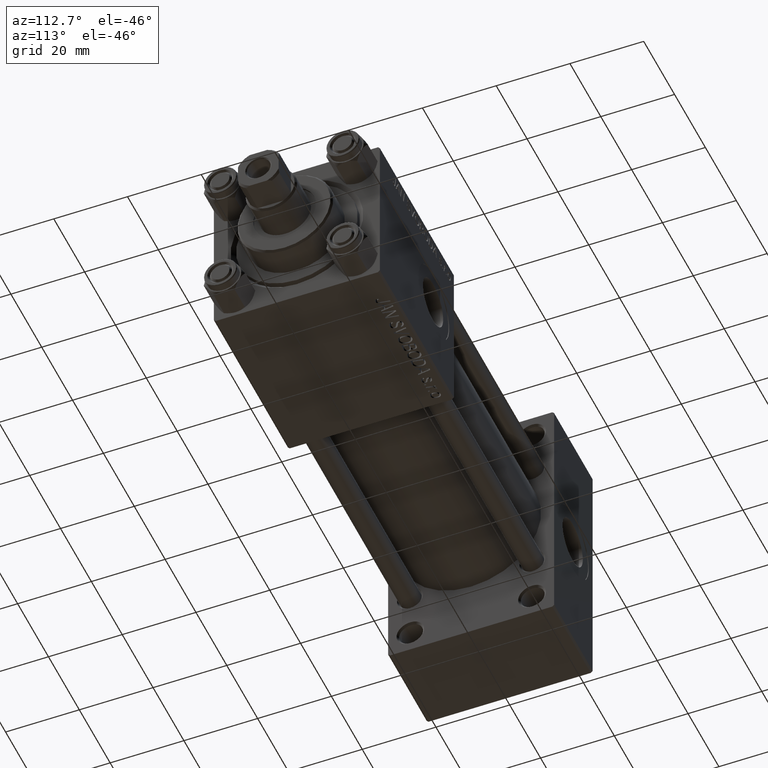
[diagram: clean part render]
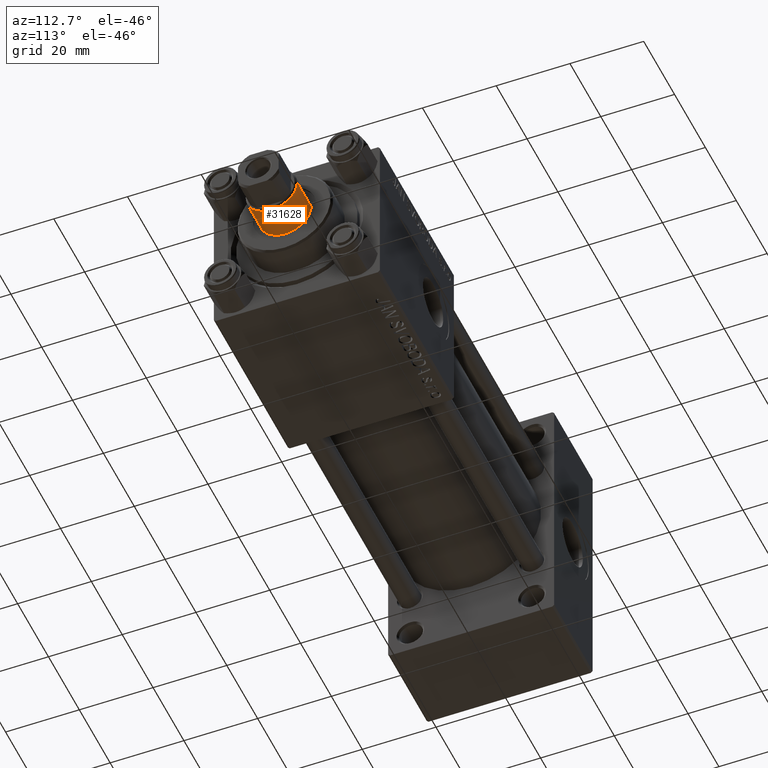
[diagram: same view with one face highlighted and labeled with its STEP entity id]
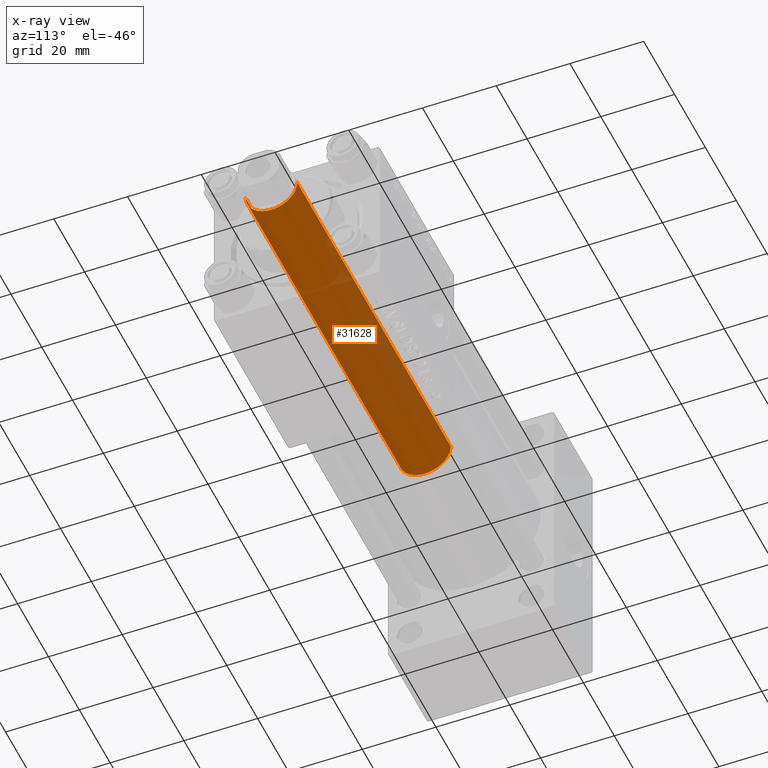
[diagram: x-ray of the same camera — body ghosted, the highlighted face saturated]
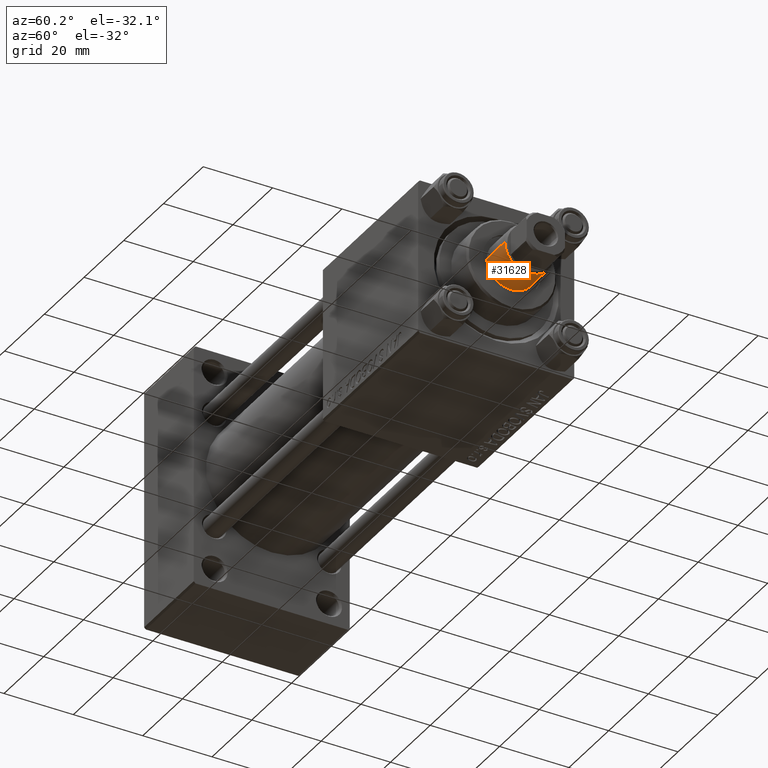
[diagram: same view with one face highlighted and labeled with its STEP entity id]
A machine part, auxiliary view. The second image highlights one B-rep face of the part: STEP entity #31628.
The next image is the same camera in x-ray: the body ghosted, the highlighted face saturated — about 53% of this face is hidden behind the body in this view.
A second angle (auxiliary view) of the same face is appended — the face is thin or edge-on in the first view.
In plain terms, the highlighted cylindrical surface (edge-blend (fillet) strip) has radius 7 mm, axis along (-1, 0, 0).
Its self-contained STEP definition (entity closure, byte-faithful):
#18 = CARTESIAN_POINT ( 'NONE',  ( -7.000000000000000000, 0.000000000000000000, 30.00000000000000000 ) ) ;
#1927 = CIRCLE ( 'NONE', #42296, 7.000000000000000000 ) ;
#3668 = AXIS2_PLACEMENT_3D ( 'NONE', #7255, #11303, #26704 ) ;
#3752 = VERTEX_POINT ( 'NONE', #31598 ) ;
#5190 = DIRECTION ( 'NONE',  ( -0.000000000000000000, -0.000000000000000000, -1.000000000000000000 ) ) ;
#7255 = CARTESIAN_POINT ( 'NONE',  ( 0.000000000000000000, 0.000000000000000000, 30.00000000000000000 ) ) ;
#8209 = VERTEX_POINT ( 'NONE', #49808 ) ;
#8735 = LINE ( 'NONE', #35513, #48803 ) ;
#11303 = DIRECTION ( 'NONE',  ( 0.000000000000000000, 0.000000000000000000, 1.000000000000000000 ) ) ;
#13784 = VECTOR ( 'NONE', #33476, 1000.000000000000000 ) ;
#14915 = ORIENTED_EDGE ( 'NONE', *, *, #46935, .T. ) ;
#17560 = DIRECTION ( 'NONE',  ( -0.000000000000000000, -0.000000000000000000, -1.000000000000000000 ) ) ;
#18640 = VERTEX_POINT ( 'NONE', #18 ) ;
#19813 = CIRCLE ( 'NONE', #3668, 7.000000000000000000 ) ;
#21011 = EDGE_CURVE ( 'NONE', #8209, #18640, #21862, .T. ) ;
#21066 = ORIENTED_EDGE ( 'NONE', *, *, #21011, .F. ) ;
#21862 = LINE ( 'NONE', #37019, #13784 ) ;
#23075 = ORIENTED_EDGE ( 'NONE', *, *, #46124, .T. ) ;
#25054 = AXIS2_PLACEMENT_3D ( 'NONE', #40303, #17560, #47880 ) ;
#26704 = DIRECTION ( 'NONE',  ( 1.000000000000000000, 0.000000000000000000, 0.000000000000000000 ) ) ;
#26722 = VERTEX_POINT ( 'NONE', #28303 ) ;
#28303 = CARTESIAN_POINT ( 'NONE',  ( 7.000000000000000000, 8.572527594031473190E-16, 30.00000000000000000 ) ) ;
#28935 = CYLINDRICAL_SURFACE ( 'NONE', #25054, 7.000000000000000000 ) ;
#29496 = CARTESIAN_POINT ( 'NONE',  ( 0.000000000000000000, 0.000000000000000000, 129.5000000000000284 ) ) ;
#31598 = CARTESIAN_POINT ( 'NONE',  ( 7.000000000000000000, 8.572527594031473190E-16, 129.5000000000000284 ) ) ;
#31628 = ADVANCED_FACE ( 'NONE', ( #36762 ), #28935, .T. ) ;
#33040 = DIRECTION ( 'NONE',  ( 0.000000000000000000, 0.000000000000000000, -1.000000000000000000 ) ) ;
#33476 = DIRECTION ( 'NONE',  ( -0.000000000000000000, -0.000000000000000000, -1.000000000000000000 ) ) ;
#35513 = CARTESIAN_POINT ( 'NONE',  ( 7.000000000000000000, 8.572527594031473190E-16, 130.0000000000000000 ) ) ;
#35948 = ORIENTED_EDGE ( 'NONE', *, *, #43544, .T. ) ;
#36762 = FACE_OUTER_BOUND ( 'NONE', #45608, .T. ) ;
#37019 = CARTESIAN_POINT ( 'NONE',  ( -7.000000000000000000, 0.000000000000000000, 130.0000000000000000 ) ) ;
#40303 = CARTESIAN_POINT ( 'NONE',  ( 0.000000000000000000, 0.000000000000000000, 130.0000000000000000 ) ) ;
#42296 = AXIS2_PLACEMENT_3D ( 'NONE', #29496, #33040, #44912 ) ;
#43544 = EDGE_CURVE ( 'NONE', #8209, #3752, #1927, .T. ) ;
#44912 = DIRECTION ( 'NONE',  ( 1.000000000000000000, 0.000000000000000000, 0.000000000000000000 ) ) ;
#45608 = EDGE_LOOP ( 'NONE', ( #35948, #23075, #14915, #21066 ) ) ;
#46124 = EDGE_CURVE ( 'NONE', #3752, #26722, #8735, .T. ) ;
#46935 = EDGE_CURVE ( 'NONE', #26722, #18640, #19813, .T. ) ;
#47880 = DIRECTION ( 'NONE',  ( -1.000000000000000000, 0.000000000000000000, 0.000000000000000000 ) ) ;
#48803 = VECTOR ( 'NONE', #5190, 1000.000000000000000 ) ;
#49808 = CARTESIAN_POINT ( 'NONE',  ( -7.000000000000000000, 0.000000000000000000, 129.5000000000000284 ) ) ;